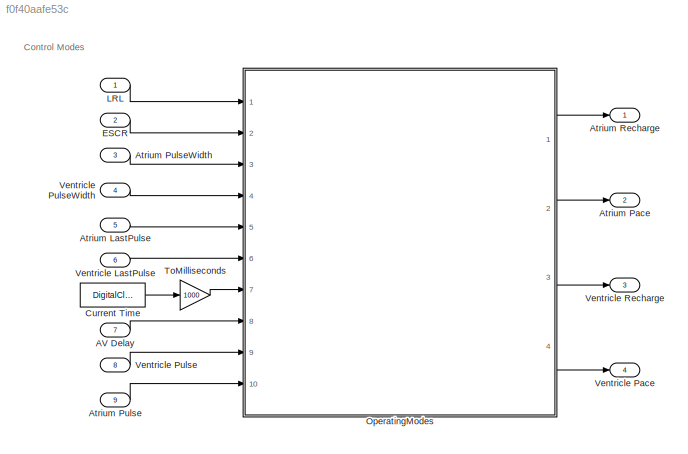
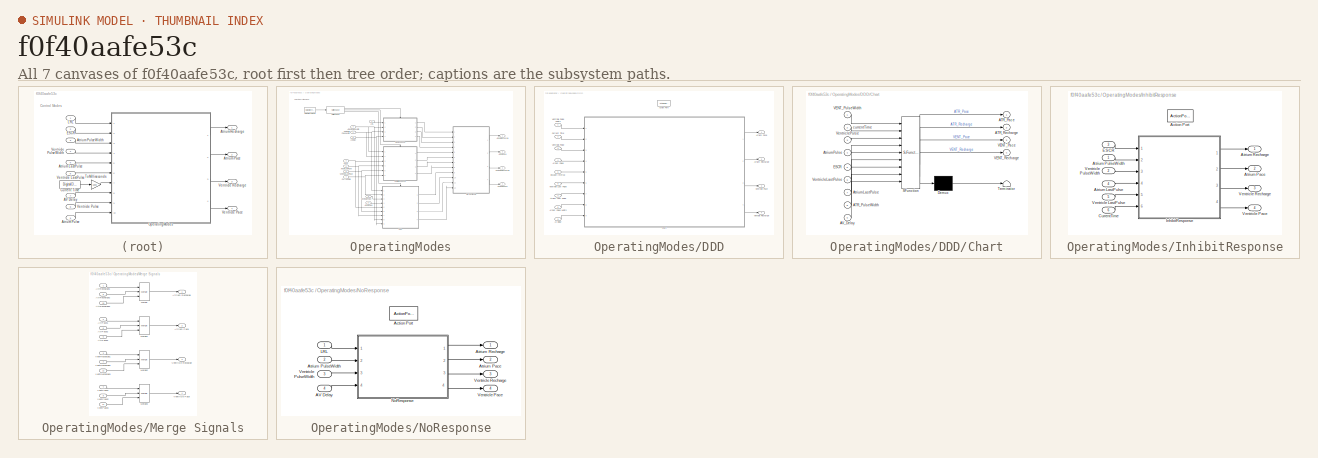
[diagram: thumbnail index - all 7 canvases of the model, root first then tree order]
MODEL slx_f0f40aafe53c
KIND model
CONFIG AbsTol = auto
CONFIG EnableMultiTasking = on
CONFIG FixedStep = 1e-3
CONFIG MaxStep = auto
CONFIG MinStep = auto
CONFIG RelTol = 1e-3
CONFIG SampleTimeConstraint = Unconstrained
CONFIG Solver = FixedStepAuto
CONFIG SolverName = FixedStepAuto
CONFIG StartTime = 0.0
CONFIG StopTime = 10.0
BLOCK [Inport] AV Delay
  OutDataTypeStr = uint16
  Port = 7
BLOCK [Inport] Atrium LastPulse
  Port = 5
BLOCK [Outport] Atrium Pace
  Port = 2
BLOCK [Inport] Atrium Pulse
  OutDataTypeStr = boolean
  Port = 9
BLOCK [Inport] Atrium PulseWidth
  OutDataTypeStr = uint16
  Port = 3
  Unit = ms
BLOCK [Outport] Atrium Recharge
BLOCK [DigitalClock] Current Time
  SampleTime = 0.001
BLOCK [Inport] ESCR
  Port = 2
  Unit = ms
BLOCK [Inport] LRL
  Unit = ms
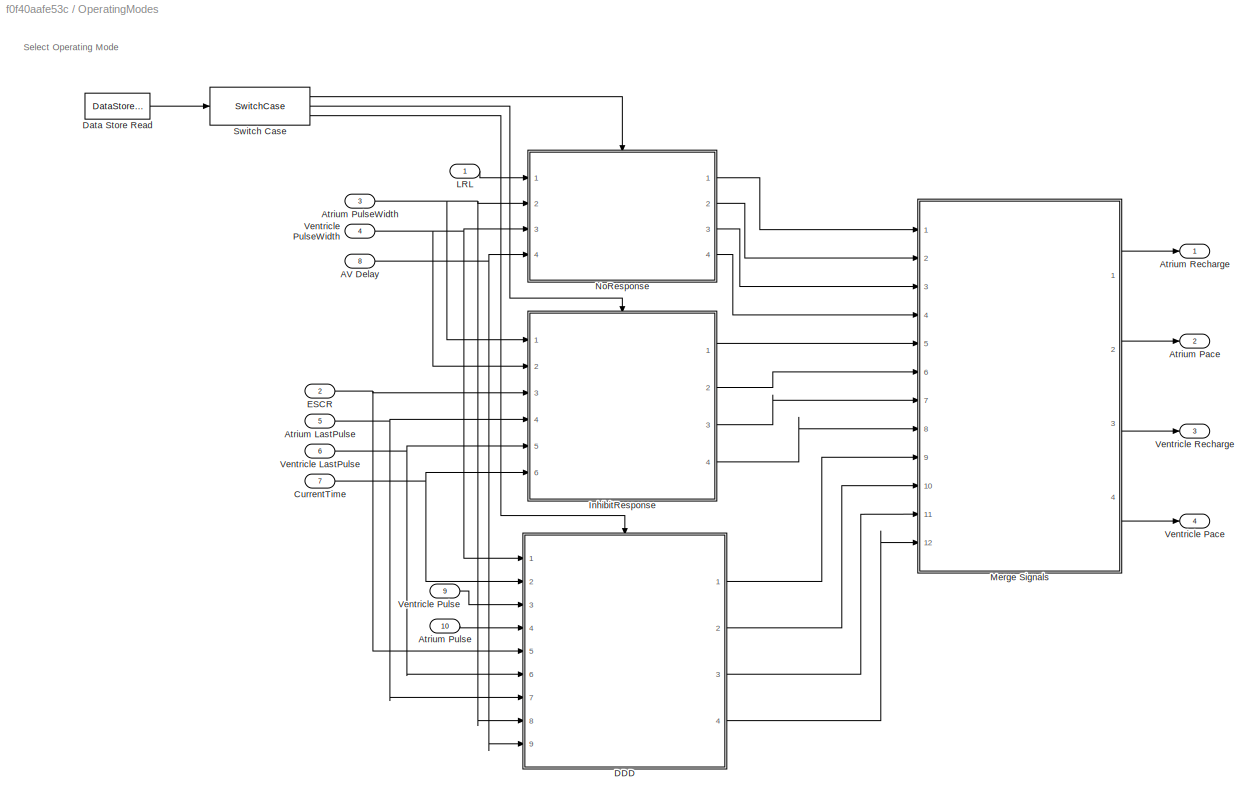
BLOCK [SubSystem] OperatingModes
  Ports = [10, 4]
  RequestExecContextInheritance = off
BLOCK [Inport] OperatingModes/AV Delay
  Port = 8
BLOCK [Inport] OperatingModes/Atrium LastPulse
  Port = 5
BLOCK [Outport] OperatingModes/Atrium Pace
  OutDataTypeStr = boolean
  Port = 2
BLOCK [Inport] OperatingModes/Atrium Pulse
  OutDataTypeStr = boolean
  Port = 10
BLOCK [Inport] OperatingModes/Atrium PulseWidth
  Port = 3
BLOCK [Outport] OperatingModes/Atrium Recharge
BLOCK [Inport] OperatingModes/CurrentTime
  Port = 7
BLOCK [SubSystem] OperatingModes/DDD
  Ports = [9, 4, 0, 0, 0, 0, 0, 1]
  RequestExecContextInheritance = off
  TreatAsAtomicUnit = on
BLOCK [Inport] OperatingModes/DDD/AV Delay
  Port = 9
BLOCK [ActionPort] OperatingModes/DDD/Action Port
BLOCK [Inport] OperatingModes/DDD/Atrium Last Pulse
  Port = 7
BLOCK [Outport] OperatingModes/DDD/Atrium Pace
BLOCK [Inport] OperatingModes/DDD/Atrium Pulse
  Port = 4
BLOCK [Inport] OperatingModes/DDD/Atrium Pulse Width
  Port = 8
BLOCK [Outport] OperatingModes/DDD/Atrium Recharge
  Port = 2
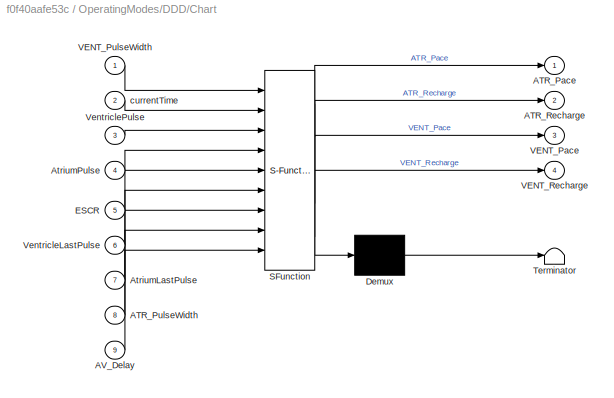
BLOCK [SubSystem] OperatingModes/DDD/Chart
  ErrorFcn = Stateflow.Translate.translate
  PermitHierarchicalResolution = ExplicitOnly
  Ports = [9, 4]
  RequestExecContextInheritance = off
  SFBlockType = Chart
  TreatAsAtomicUnit = on
BLOCK [Demux] OperatingModes/DDD/Chart/ Demux 
  Outputs = 1
  Ports = [1, 1]
BLOCK [S-Function] OperatingModes/DDD/Chart/ SFunction 
  EnableBusSupport = on
  FunctionName = sf_sfun
  PortCounts = [9 5]
  Ports = [9, 5]
  SFcnIsStateOwnerBlock = off
  SFunctionDeploymentMode = off
  Tag = Stateflow S-Function 3
BLOCK [Terminator] OperatingModes/DDD/Chart/ Terminator 
BLOCK [Outport] OperatingModes/DDD/Chart/ATR_Pace
BLOCK [Inport] OperatingModes/DDD/Chart/ATR_PulseWidth
  Port = 8
BLOCK [Outport] OperatingModes/DDD/Chart/ATR_Recharge
  Port = 2
BLOCK [Inport] OperatingModes/DDD/Chart/AV_Delay
  Port = 9
BLOCK [Inport] OperatingModes/DDD/Chart/AtriumLastPulse
  Port = 7
BLOCK [Inport] OperatingModes/DDD/Chart/AtriumPulse
  Port = 4
BLOCK [Inport] OperatingModes/DDD/Chart/ESCR
  Port = 5
BLOCK [Outport] OperatingModes/DDD/Chart/VENT_Pace
  Port = 3
BLOCK [Inport] OperatingModes/DDD/Chart/VENT_PulseWidth
BLOCK [Outport] OperatingModes/DDD/Chart/VENT_Recharge
  Port = 4
BLOCK [Inport] OperatingModes/DDD/Chart/VentricleLastPulse
  Port = 6
BLOCK [Inport] OperatingModes/DDD/Chart/VentriclePulse
  Port = 3
BLOCK [Inport] OperatingModes/DDD/Chart/currentTime
  Port = 2
BLOCK [Inport] OperatingModes/DDD/Current Time
  Port = 2
BLOCK [Inport] OperatingModes/DDD/Escape Interval
  Port = 5
BLOCK [Outport] OperatingModes/DDD/Venticle Recharge
  Port = 4
BLOCK [Inport] OperatingModes/DDD/Ventricle Last Pulse
  Port = 6
BLOCK [Outport] OperatingModes/DDD/Ventricle Pace
  Port = 3
BLOCK [Inport] OperatingModes/DDD/Ventricle Pulse
  Port = 3
BLOCK [Inport] OperatingModes/DDD/Ventricle Pulse Width
BLOCK [DataStoreRead] OperatingModes/Data Store Read
  DataStoreName = Response
  Ports = [0, 1]
BLOCK [Inport] OperatingModes/ESCR
  Port = 2
BLOCK [SubSystem] OperatingModes/InhibitResponse
  Ports = [6, 4, 0, 0, 0, 0, 0, 1]
  RequestExecContextInheritance = off
BLOCK [ActionPort] OperatingModes/InhibitResponse/Action Port
BLOCK [Inport] OperatingModes/InhibitResponse/Atrium LastPulse
  Port = 4
BLOCK [Outport] OperatingModes/InhibitResponse/Atrium Pace
  Port = 2
BLOCK [Inport] OperatingModes/InhibitResponse/Atrium PulseWidth
BLOCK [Outport] OperatingModes/InhibitResponse/Atrium Recharge
BLOCK [Inport] OperatingModes/InhibitResponse/CurrentTime
  Port = 6
BLOCK [Inport] OperatingModes/InhibitResponse/ESCR
  Port = 3
BLOCK [ModelReference] OperatingModes/InhibitResponse/InhibitResponse
  ModelNameDialog = AAI_VVI.slx
  ModelReferenceVersion = 1.20
  Ports = [6, 4]
BLOCK [Inport] OperatingModes/InhibitResponse/Ventricle LastPulse
  Port = 5
BLOCK [Outport] OperatingModes/InhibitResponse/Ventricle Pace
  Port = 4
BLOCK [Inport] OperatingModes/InhibitResponse/Ventricle PulseWidth 
  Port = 2
BLOCK [Outport] OperatingModes/InhibitResponse/Ventricle Recharge
  Port = 3
BLOCK [Inport] OperatingModes/LRL
BLOCK [SubSystem] OperatingModes/Merge Signals
  Ports = [12, 4]
  RequestExecContextInheritance = off
BLOCK [Inport] OperatingModes/Merge Signals/AtrPace1
  Port = 2
BLOCK [Inport] OperatingModes/Merge Signals/AtrPace2
  Port = 6
BLOCK [Inport] OperatingModes/Merge Signals/AtrPace3
  Port = 9
BLOCK [Inport] OperatingModes/Merge Signals/AtrRecharge1
BLOCK [Inport] OperatingModes/Merge Signals/AtrRecharge2
  Port = 5
BLOCK [Inport] OperatingModes/Merge Signals/AtrRecharge3
  Port = 10
BLOCK [Outport] OperatingModes/Merge Signals/Atrium Pace
  Port = 2
BLOCK [Outport] OperatingModes/Merge Signals/Atrium Recharge
BLOCK [Merge] OperatingModes/Merge Signals/Merge
  Inputs = 3
  Ports = [3, 1]
BLOCK [Merge] OperatingModes/Merge Signals/Merge1
  Inputs = 3
  Ports = [3, 1]
BLOCK [Merge] OperatingModes/Merge Signals/Merge2
  Inputs = 3
  Ports = [3, 1]
BLOCK [Merge] OperatingModes/Merge Signals/Merge3
  Inputs = 3
  Ports = [3, 1]
BLOCK [Inport] OperatingModes/Merge Signals/VentPace1
  Port = 4
BLOCK [Inport] OperatingModes/Merge Signals/VentPace2
  Port = 8
BLOCK [Inport] OperatingModes/Merge Signals/VentPace3
  Port = 11
BLOCK [Inport] OperatingModes/Merge Signals/VentRecharge1
  Port = 3
BLOCK [Inport] OperatingModes/Merge Signals/VentRecharge2
  Port = 7
BLOCK [Inport] OperatingModes/Merge Signals/VentRecharge3
  Port = 12
BLOCK [Outport] OperatingModes/Merge Signals/Ventricle Pace
  Port = 4
BLOCK [Outport] OperatingModes/Merge Signals/Ventricle Recharge
  Port = 3
BLOCK [SubSystem] OperatingModes/NoResponse
  Ports = [4, 4, 0, 0, 0, 0, 0, 1]
  RequestExecContextInheritance = off
BLOCK [Inport] OperatingModes/NoResponse/AV Delay
  Port = 4
BLOCK [ActionPort] OperatingModes/NoResponse/Action Port
BLOCK [Outport] OperatingModes/NoResponse/Atrium Pace
  Port = 2
BLOCK [Inport] OperatingModes/NoResponse/Atrium PulseWidth
  Port = 2
BLOCK [Outport] OperatingModes/NoResponse/Atrium Recharge
BLOCK [Inport] OperatingModes/NoResponse/LRL
BLOCK [ModelReference] OperatingModes/NoResponse/NoResponse
  ModelNameDialog = AOO_VOO.slx
  ModelReferenceVersion = 1.34
  Ports = [4, 4]
BLOCK [Outport] OperatingModes/NoResponse/Ventricle Pace
  Port = 4
BLOCK [Inport] OperatingModes/NoResponse/Ventricle PulseWidth
  Port = 3
BLOCK [Outport] OperatingModes/NoResponse/Ventricle Recharge
  Port = 3
BLOCK [SwitchCase] OperatingModes/Switch Case
  CaseConditions = {1,2,3}
  Ports = [1, 3]
  ShowDefaultCase = off
BLOCK [Inport] OperatingModes/Ventricle LastPulse
  Port = 6
BLOCK [Outport] OperatingModes/Ventricle Pace
  OutDataTypeStr = boolean
  Port = 4
BLOCK [Inport] OperatingModes/Ventricle Pulse
  OutDataTypeStr = boolean
  Port = 9
BLOCK [Inport] OperatingModes/Ventricle PulseWidth 
  Port = 4
BLOCK [Outport] OperatingModes/Ventricle Recharge
  Port = 3
BLOCK [Gain] ToMilliseconds
  Gain = 1000
BLOCK [Inport] Ventricle LastPulse
  Port = 6
BLOCK [Outport] Ventricle Pace
  Port = 4
BLOCK [Inport] Ventricle Pulse
  OutDataTypeStr = boolean
  Port = 8
BLOCK [Inport] Ventricle PulseWidth
  OutDataTypeStr = uint16
  Port = 4
BLOCK [Outport] Ventricle Recharge
  Port = 3
ANNOTATION (root): Control Modes
ANNOTATION OperatingModes: Select Operating Mode
LINE AV Delay:1 -> OperatingModes:8
LINE Atrium LastPulse:1 -> OperatingModes:5
LINE Atrium Pulse:1 -> OperatingModes:10
LINE Atrium PulseWidth:1 -> OperatingModes:3
LINE Current Time:1 -> ToMilliseconds:1
LINE ESCR:1 -> OperatingModes:2
LINE LRL:1 -> OperatingModes:1
NET OperatingModes/AV Delay:1 -> OperatingModes/DDD:9, OperatingModes/NoResponse:4
NET OperatingModes/Atrium LastPulse:1 -> OperatingModes/DDD:7, OperatingModes/InhibitResponse:4
LINE OperatingModes/Atrium Pulse:1 -> OperatingModes/DDD:4
NET OperatingModes/Atrium PulseWidth:1 -> OperatingModes/DDD:8, OperatingModes/InhibitResponse:1, OperatingModes/NoResponse:2
NET OperatingModes/CurrentTime:1 -> OperatingModes/DDD:2, OperatingModes/InhibitResponse:6
LINE OperatingModes/DDD/AV Delay:1 -> OperatingModes/DDD/Chart:9
LINE OperatingModes/DDD/Atrium Last Pulse:1 -> OperatingModes/DDD/Chart:7
LINE OperatingModes/DDD/Atrium Pulse Width:1 -> OperatingModes/DDD/Chart:8
LINE OperatingModes/DDD/Atrium Pulse:1 -> OperatingModes/DDD/Chart:4
LINE OperatingModes/DDD/Chart:1 -> OperatingModes/DDD/Atrium Pace:1
LINE OperatingModes/DDD/Chart:2 -> OperatingModes/DDD/Atrium Recharge:1
LINE OperatingModes/DDD/Chart:3 -> OperatingModes/DDD/Ventricle Pace:1
LINE OperatingModes/DDD/Chart:4 -> OperatingModes/DDD/Venticle Recharge:1
LINE OperatingModes/DDD/Current Time:1 -> OperatingModes/DDD/Chart:2
LINE OperatingModes/DDD/Escape Interval:1 -> OperatingModes/DDD/Chart:5
LINE OperatingModes/DDD/Ventricle Last Pulse:1 -> OperatingModes/DDD/Chart:6
LINE OperatingModes/DDD/Ventricle Pulse Width:1 -> OperatingModes/DDD/Chart:1
LINE OperatingModes/DDD/Ventricle Pulse:1 -> OperatingModes/DDD/Chart:3
LINE OperatingModes/DDD:1 -> OperatingModes/Merge Signals:9
LINE OperatingModes/DDD:2 -> OperatingModes/Merge Signals:10
LINE OperatingModes/DDD:3 -> OperatingModes/Merge Signals:11
LINE OperatingModes/DDD:4 -> OperatingModes/Merge Signals:12
LINE OperatingModes/Data Store Read:1 -> OperatingModes/Switch Case:1
NET OperatingModes/ESCR:1 -> OperatingModes/DDD:5, OperatingModes/InhibitResponse:3
LINE OperatingModes/InhibitResponse/Atrium LastPulse:1 -> OperatingModes/InhibitResponse/InhibitResponse:4
LINE OperatingModes/InhibitResponse/Atrium PulseWidth:1 -> OperatingModes/InhibitResponse/InhibitResponse:2
LINE OperatingModes/InhibitResponse/CurrentTime:1 -> OperatingModes/InhibitResponse/InhibitResponse:6
LINE OperatingModes/InhibitResponse/ESCR:1 -> OperatingModes/InhibitResponse/InhibitResponse:1
LINE OperatingModes/InhibitResponse/InhibitResponse:1 -> OperatingModes/InhibitResponse/Atrium Recharge:1
LINE OperatingModes/InhibitResponse/InhibitResponse:2 -> OperatingModes/InhibitResponse/Atrium Pace:1
LINE OperatingModes/InhibitResponse/InhibitResponse:3 -> OperatingModes/InhibitResponse/Ventricle Recharge:1
LINE OperatingModes/InhibitResponse/InhibitResponse:4 -> OperatingModes/InhibitResponse/Ventricle Pace:1
LINE OperatingModes/InhibitResponse/Ventricle LastPulse:1 -> OperatingModes/InhibitResponse/InhibitResponse:5
LINE OperatingModes/InhibitResponse/Ventricle PulseWidth :1 -> OperatingModes/InhibitResponse/InhibitResponse:3
LINE OperatingModes/InhibitResponse:1 -> OperatingModes/Merge Signals:5
LINE OperatingModes/InhibitResponse:2 -> OperatingModes/Merge Signals:6
LINE OperatingModes/InhibitResponse:3 -> OperatingModes/Merge Signals:7
LINE OperatingModes/InhibitResponse:4 -> OperatingModes/Merge Signals:8
LINE OperatingModes/LRL:1 -> OperatingModes/NoResponse:1
LINE OperatingModes/Merge Signals/AtrPace1:1 -> OperatingModes/Merge Signals/Merge1:1
LINE OperatingModes/Merge Signals/AtrPace2:1 -> OperatingModes/Merge Signals/Merge1:2
LINE OperatingModes/Merge Signals/AtrPace3:1 -> OperatingModes/Merge Signals/Merge1:3
LINE OperatingModes/Merge Signals/AtrRecharge1:1 -> OperatingModes/Merge Signals/Merge:1
LINE OperatingModes/Merge Signals/AtrRecharge2:1 -> OperatingModes/Merge Signals/Merge:2
LINE OperatingModes/Merge Signals/AtrRecharge3:1 -> OperatingModes/Merge Signals/Merge:3
LINE OperatingModes/Merge Signals/Merge1:1 -> OperatingModes/Merge Signals/Atrium Pace:1
LINE OperatingModes/Merge Signals/Merge2:1 -> OperatingModes/Merge Signals/Ventricle Recharge:1
LINE OperatingModes/Merge Signals/Merge3:1 -> OperatingModes/Merge Signals/Ventricle Pace:1
LINE OperatingModes/Merge Signals/Merge:1 -> OperatingModes/Merge Signals/Atrium Recharge:1
LINE OperatingModes/Merge Signals/VentPace1:1 -> OperatingModes/Merge Signals/Merge3:1
LINE OperatingModes/Merge Signals/VentPace2:1 -> OperatingModes/Merge Signals/Merge3:2
LINE OperatingModes/Merge Signals/VentPace3:1 -> OperatingModes/Merge Signals/Merge3:3
LINE OperatingModes/Merge Signals/VentRecharge1:1 -> OperatingModes/Merge Signals/Merge2:1
LINE OperatingModes/Merge Signals/VentRecharge2:1 -> OperatingModes/Merge Signals/Merge2:2
LINE OperatingModes/Merge Signals/VentRecharge3:1 -> OperatingModes/Merge Signals/Merge2:3
LINE OperatingModes/Merge Signals:1 -> OperatingModes/Atrium Recharge:1
LINE OperatingModes/Merge Signals:2 -> OperatingModes/Atrium Pace:1
LINE OperatingModes/Merge Signals:3 -> OperatingModes/Ventricle Recharge:1
LINE OperatingModes/Merge Signals:4 -> OperatingModes/Ventricle Pace:1
LINE OperatingModes/NoResponse/AV Delay:1 -> OperatingModes/NoResponse/NoResponse:4
LINE OperatingModes/NoResponse/Atrium PulseWidth:1 -> OperatingModes/NoResponse/NoResponse:2
LINE OperatingModes/NoResponse/LRL:1 -> OperatingModes/NoResponse/NoResponse:1
LINE OperatingModes/NoResponse/NoResponse:1 -> OperatingModes/NoResponse/Atrium Recharge:1
LINE OperatingModes/NoResponse/NoResponse:2 -> OperatingModes/NoResponse/Atrium Pace:1
LINE OperatingModes/NoResponse/NoResponse:3 -> OperatingModes/NoResponse/Ventricle Recharge:1
LINE OperatingModes/NoResponse/NoResponse:4 -> OperatingModes/NoResponse/Ventricle Pace:1
LINE OperatingModes/NoResponse/Ventricle PulseWidth:1 -> OperatingModes/NoResponse/NoResponse:3
LINE OperatingModes/NoResponse:1 -> OperatingModes/Merge Signals:1
LINE OperatingModes/NoResponse:2 -> OperatingModes/Merge Signals:2
LINE OperatingModes/NoResponse:3 -> OperatingModes/Merge Signals:3
LINE OperatingModes/NoResponse:4 -> OperatingModes/Merge Signals:4
LINE OperatingModes/Switch Case:1 -> OperatingModes/NoResponse:ifaction
LINE OperatingModes/Switch Case:2 -> OperatingModes/InhibitResponse:ifaction
LINE OperatingModes/Switch Case:3 -> OperatingModes/DDD:ifaction
NET OperatingModes/Ventricle LastPulse:1 -> OperatingModes/DDD:6, OperatingModes/InhibitResponse:5
LINE OperatingModes/Ventricle Pulse:1 -> OperatingModes/DDD:3
NET OperatingModes/Ventricle PulseWidth :1 -> OperatingModes/DDD:1, OperatingModes/InhibitResponse:2, OperatingModes/NoResponse:3
LINE OperatingModes:1 -> Atrium Recharge:1
LINE OperatingModes:2 -> Atrium Pace:1
LINE OperatingModes:3 -> Ventricle Recharge:1
LINE OperatingModes:4 -> Ventricle Pace:1
LINE ToMilliseconds:1 -> OperatingModes:7
LINE Ventricle LastPulse:1 -> OperatingModes:6
LINE Ventricle Pulse:1 -> OperatingModes:9
LINE Ventricle PulseWidth:1 -> OperatingModes:4
note: NET lines group one-source signal fan-out (src -> all destinations, sorted); 1:1 wires keep LINE
CHART OperatingModes/DDD/Chart states=22 transitions=13
  STATE_LABEL 'Recharge phase split into two to\nensure correct pin activation order.'
  STATE_LABEL 'Paces the Atrium by discharging\nC22 into the heart.'
  STATE_LABEL 'Starts charging of C22\nand discharging of C21.'
  STATE_LABEL 'Sets up for charging C22\nand discharging C21.'
  STATE_LABEL 'VENT_Discharge\nentry:\nVENT_Recharge=2;'
  STATE_LABEL 'ATR_Discharge_Init\nentry:\nATR_Pace=false;\nATR_Recharge=1;\n'
  STATE_LABEL 'ATR_Recharge\nentry:\nATR_Recharge=2;'
  STATE_LABEL 'ATR_Pace\nentry:\nATR_Pace=true;\nATR_Recharge=0;\nAtrium_Paced=currentTime;'
  STATE_LABEL 'ATR_Recharge_init\nentry:\nATR_Recharge=1;\nVENT_Recharge=0;\nATR_Pace=false;\nVentricle_Paced=currentTime;'
  STATE_LABEL 'Skips the pacing of the Atrium if the heart natural paces the\n Atrium and moves to set up the pacing of the Ventricle '
  STATE_LABEL 'The Ventricle needs to be discharged\n before the Atrium can be paced'
  STATE_LABEL 'Skips the pacing of the Ventricle if the heart natural paces the\n Ventricle and moves to set up the pacing of the Atrium '
  STATE_LABEL 'The atrium needs to be discharged\n before the Ventricle can be paced'
  STATE_LABEL 'VENT_Recharge_init\nentry:\nVENT_Pace=false;\nVENT_Recharge=1;\nATR_Recharge=0;\nAtrium_Paced=currentTime;\n'
  STATE_LABEL 'VENT_Pace\nentry:\nVENT_Pace=true;\nVENT_Recharge=0;\nVentricle_Paced=currentTime;\n'
  STATE_LABEL 'VENT_Discharge_Init\nentry:\nVENT_Recharge=1;\nVENT_Pace=false;'
  STATE_LABEL 'ATR_Discharge\nentry:\nATR_Recharge=2;'
  STATE_LABEL 'VENT_Recharge\nentry:\nVENT_Recharge=2;'
  STATE_LABEL 'Paces the Ventricle by discharging\nC22 into the heart.'
  STATE_LABEL 'Starts charging of C22\nand discharging of C21.'
  STATE_LABEL 'Sets up for charging C22\nand discharging C21.'
  STATE_LABEL 'Recharge phase split into two to\nensure correct pin activation order.'
CHART  states=0 transitions=0
